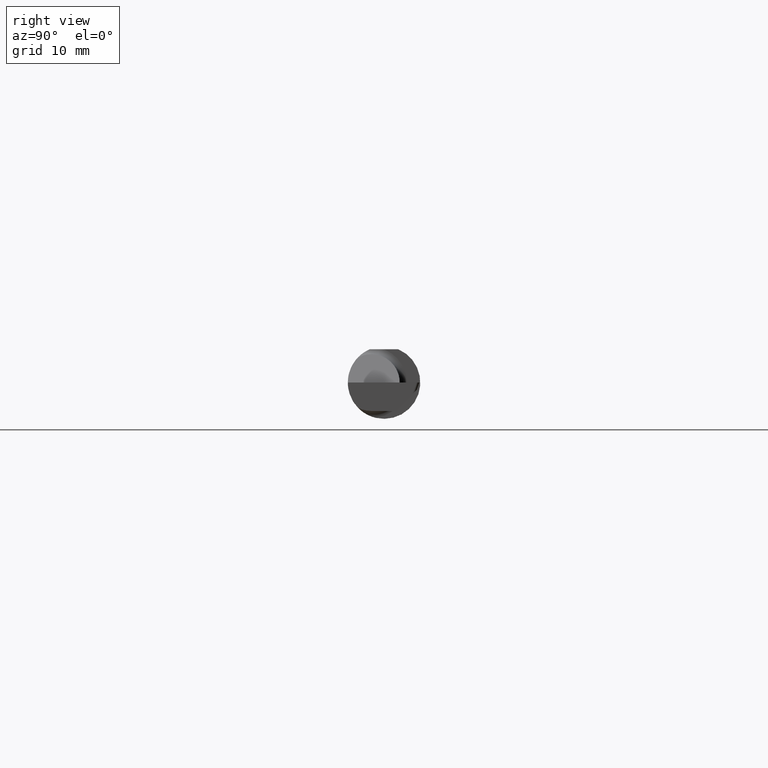
[diagram: clean part render]
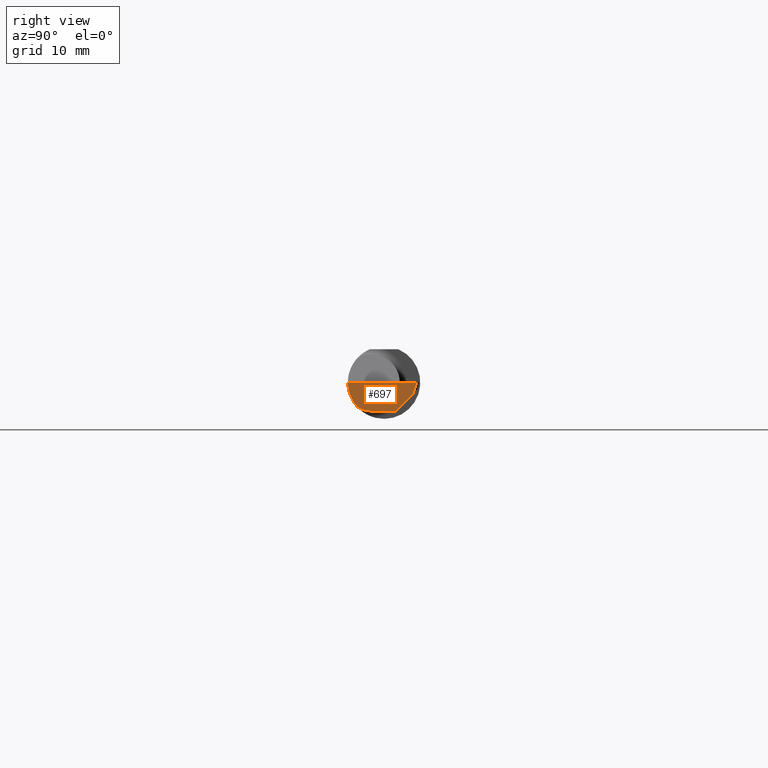
[diagram: same view with one face highlighted and labeled with its STEP entity id]
A machine part, right view. The second image highlights one B-rep face of the part: STEP entity #697.
In plain terms, the highlighted planar face has unit normal (-0.9992, 0.0174, 0.0349).
Its self-contained STEP definition (entity closure, byte-faithful):
#24 =( BOUNDED_CURVE ( )  B_SPLINE_CURVE ( 3, ( #63, #266, #222, #600 ),
 .UNSPECIFIED., .F., .T. ) 
 B_SPLINE_CURVE_WITH_KNOTS ( ( 4, 4 ),
 ( 6.253187659403602439, 6.746650124384888869 ),
 .UNSPECIFIED. ) 
 CURVE ( )  GEOMETRIC_REPRESENTATION_ITEM ( )  RATIONAL_B_SPLINE_CURVE ( ( 1.000000000000000000, 0.9798106333074692031, 0.9798106333074692031, 1.000000000000000000 ) ) 
 REPRESENTATION_ITEM ( '' )  );
#27 = LINE ( 'NONE', #247, #246 ) ;
#28 = ORIENTED_EDGE ( 'NONE', *, *, #159, .T. ) ;
#63 = CARTESIAN_POINT ( 'NONE',  ( 2.493431982762754462, -0.09042045454545434569, -0.08630840862739522223 ) ) ;
#79 = DIRECTION ( 'NONE',  ( -0.01745240643727528213, -0.9998476951563914916, 0.000000000000000000 ) ) ;
#87 = VERTEX_POINT ( 'NONE', #141 ) ;
#110 = DIRECTION ( 'NONE',  ( -0.03701368837992363020, -0.7066222423871550973, -0.7066222423871629799 ) ) ;
#113 = AXIS2_PLACEMENT_3D ( 'NONE', #282, #612, #511 ) ;
#128 = EDGE_CURVE ( 'NONE', #696, #87, #660, .T. ) ;
#141 = CARTESIAN_POINT ( 'NONE',  ( 2.495842809704562626, -0.1250000000000000000, 0.000000000000000000 ) ) ;
#147 = VERTEX_POINT ( 'NONE', #385 ) ;
#148 = CARTESIAN_POINT ( 'NONE',  ( 2.493431982762754462, -0.09042045454545434569, -0.08630840862739522223 ) ) ;
#156 = ORIENTED_EDGE ( 'NONE', *, *, #274, .F. ) ;
#159 = EDGE_CURVE ( 'NONE', #696, #147, #24, .T. ) ;
#163 = FACE_OUTER_BOUND ( 'NONE', #509, .T. ) ;
#202 = CARTESIAN_POINT ( 'NONE',  ( 2.493862026000344123, -0.1128945894460738480, -0.06276352435079120273 ) ) ;
#210 = LINE ( 'NONE', #327, #259 ) ;
#222 = CARTESIAN_POINT ( 'NONE',  ( 2.493549648562250809, -0.06028551311893220327, -0.09800000000000001765 ) ) ;
#225 = VERTEX_POINT ( 'NONE', #337 ) ;
#246 = VECTOR ( 'NONE', #79, 39.37007874015747433 ) ;
#247 = CARTESIAN_POINT ( 'NONE',  ( 2.499998666069249253, 0.1130888516759625262, 0.000000000000000000 ) ) ;
#259 = VECTOR ( 'NONE', #110, 39.37007874015748143 ) ;
#266 = CARTESIAN_POINT ( 'NONE',  ( 2.493412911089820660, -0.07607783494366283927, -0.09402249966297451800 ) ) ;
#274 = EDGE_CURVE ( 'NONE', #691, #225, #210, .T. ) ;
#282 = CARTESIAN_POINT ( 'NONE',  ( 2.499998666069249253, 0.1130888516759625262, 0.000000000000000000 ) ) ;
#289 = EDGE_CURVE ( 'NONE', #225, #147, #506, .T. ) ;
#317 = CARTESIAN_POINT ( 'NONE',  ( 2.495842809704562626, -0.1250000000000000000, 0.000000000000000000 ) ) ;
#327 = CARTESIAN_POINT ( 'NONE',  ( 2.495747786320908546, 0.04837003179481734472, -0.08936610548623138972 ) ) ;
#337 = CARTESIAN_POINT ( 'NONE',  ( 2.495295532964209695, 0.03973613728104874454, -0.09800000000000008704 ) ) ;
#339 = ORIENTED_EDGE ( 'NONE', *, *, #289, .F. ) ;
#355 = DIRECTION ( 'NONE',  ( 0.03867711768362983027, 0.3253245514560478280, 0.9448111011136606230 ) ) ;
#366 = CARTESIAN_POINT ( 'NONE',  ( 2.494705994581233099, -0.1250000000000000278, -0.03254916765648423888 ) ) ;
#384 = ORIENTED_EDGE ( 'NONE', *, *, #128, .F. ) ;
#385 = CARTESIAN_POINT ( 'NONE',  ( 2.493833913251130241, -0.04400000000000041378, -0.09800000000000008704 ) ) ;
#388 = VERTEX_POINT ( 'NONE', #471 ) ;
#390 = CARTESIAN_POINT ( 'NONE',  ( 2.493431982762754462, -0.09042045454545434569, -0.08630840862739522223 ) ) ;
#393 = DIRECTION ( 'NONE',  ( -0.01745240643727527866, -0.9998476951563912696, 0.000000000000000000 ) ) ;
#399 = CARTESIAN_POINT ( 'NONE',  ( 2.498428636891867782, 0.09954970949977201555, -0.03818642778127616377 ) ) ;
#471 = CARTESIAN_POINT ( 'NONE',  ( 2.499991849855255133, 0.1126983510377570219, 0.000000000000000000 ) ) ;
#478 = EDGE_CURVE ( 'NONE', #691, #388, #677, .T. ) ;
#497 = PLANE ( 'NONE',  #113 ) ;
#504 = VECTOR ( 'NONE', #393, 39.37007874015748854 ) ;
#506 = LINE ( 'NONE', #555, #504 ) ;
#509 = EDGE_LOOP ( 'NONE', ( #156, #643, #699, #384, #28, #339 ) ) ;
#511 = DIRECTION ( 'NONE',  ( 0.03490480639812536257, 0.000000000000000000, 0.9993906415863165194 ) ) ;
#555 = CARTESIAN_POINT ( 'NONE',  ( 2.493888306049834025, -0.04088383864926533467, -0.09800000000000008704 ) ) ;
#593 = EDGE_CURVE ( 'NONE', #388, #87, #27, .T. ) ;
#600 = CARTESIAN_POINT ( 'NONE',  ( 2.493833913251130241, -0.04400000000000041378, -0.09800000000000008704 ) ) ;
#612 = DIRECTION ( 'NONE',  ( -0.9992386149554827179, 0.01744177490282193196, 0.03489949670250104552 ) ) ;
#643 = ORIENTED_EDGE ( 'NONE', *, *, #478, .T. ) ;
#660 =( BOUNDED_CURVE ( )  B_SPLINE_CURVE ( 3, ( #148, #202, #366, #317 ),
 .UNSPECIFIED., .F., .T. ) 
 B_SPLINE_CURVE_WITH_KNOTS ( ( 4, 4 ),
 ( 0.3451966888490705099, 1.107331509589587926 ),
 .UNSPECIFIED. ) 
 CURVE ( )  GEOMETRIC_REPRESENTATION_ITEM ( )  RATIONAL_B_SPLINE_CURVE ( ( 1.000000000000000000, 0.9521787881681382792, 0.9521787881681382792, 1.000000000000000000 ) ) 
 REPRESENTATION_ITEM ( '' )  );
#672 = CARTESIAN_POINT ( 'NONE',  ( 2.499996773571325548, 0.1127397658540113118, 0.0001202773598626410973 ) ) ;
#677 = LINE ( 'NONE', #672, #701 ) ;
#691 = VERTEX_POINT ( 'NONE', #399 ) ;
#696 = VERTEX_POINT ( 'NONE', #390 ) ;
#697 = ADVANCED_FACE ( 'NONE', ( #163 ), #497, .F. ) ;
#699 = ORIENTED_EDGE ( 'NONE', *, *, #593, .T. ) ;
#701 = VECTOR ( 'NONE', #355, 39.37007874015748854 ) ;